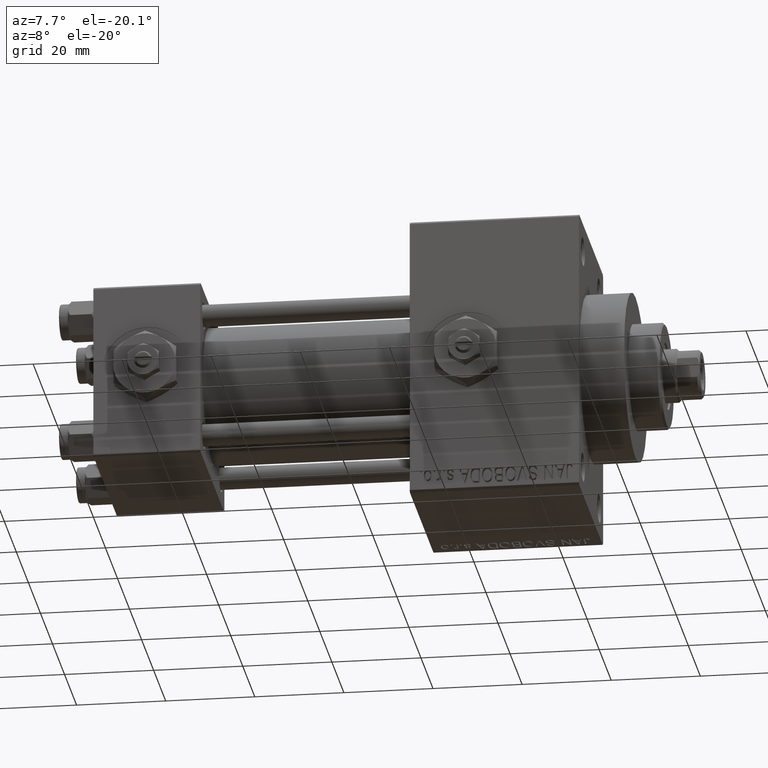
[diagram: clean part render]
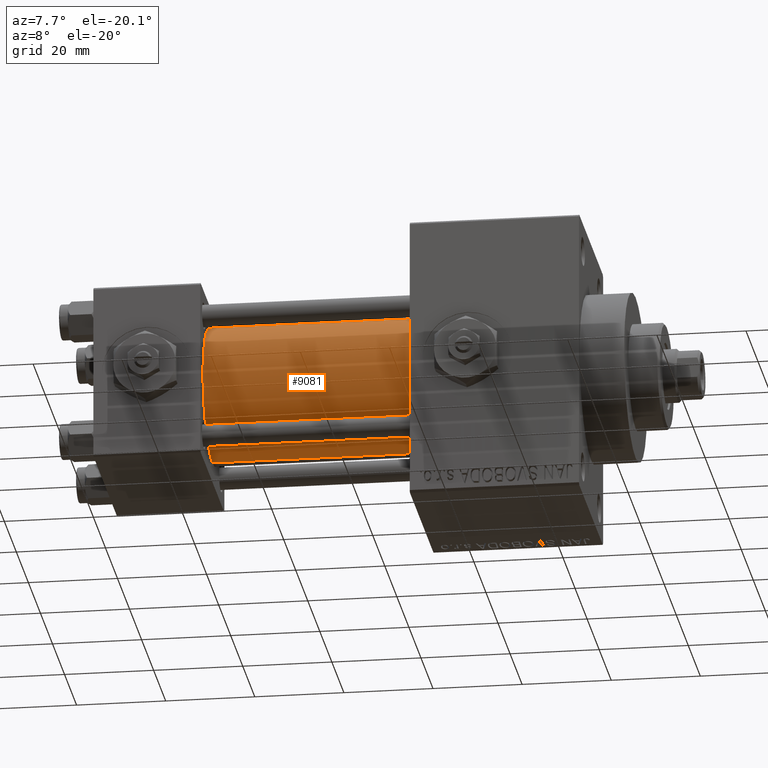
[diagram: same view with one face highlighted and labeled with its STEP entity id]
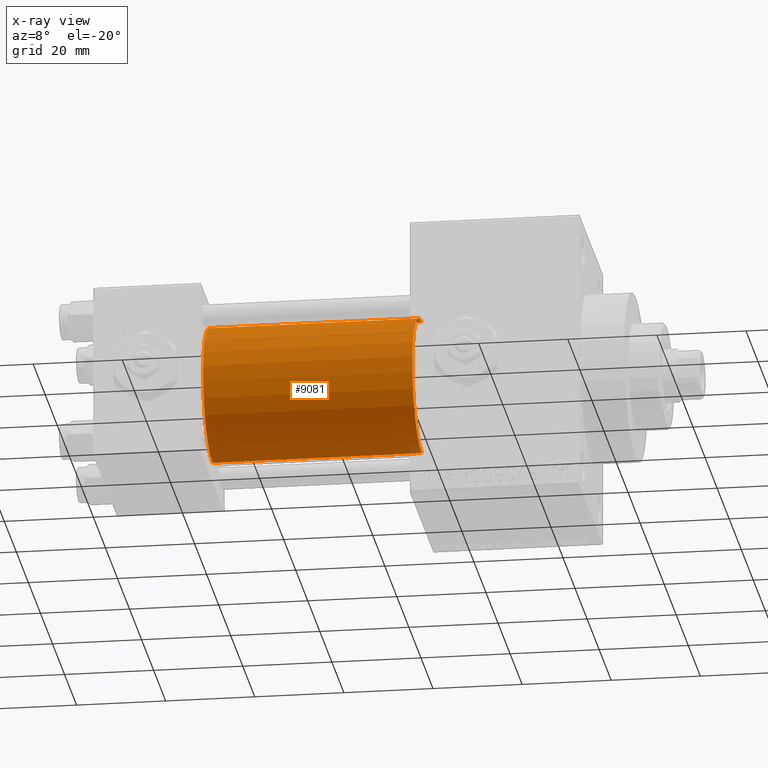
[diagram: x-ray of the same camera — body ghosted, the highlighted face saturated]
A machine part, auxiliary view. The second image highlights one B-rep face of the part: STEP entity #9081.
The next image is the same camera in x-ray: the body ghosted, the highlighted face saturated — about 0% of this face is hidden behind the body in this view.
In plain terms, the highlighted cylindrical surface (partial cylindrical patch) has radius 15.5 mm, axis along (-1, -0, -0).
Its self-contained STEP definition (entity closure, byte-faithful):
#536 = CARTESIAN_POINT ( 'NONE',  ( 71.00000000000001421, -7.038826752868131828E-16, -15.50000000000000000 ) ) ;
#926 = CIRCLE ( 'NONE', #42075, 15.50000000000000000 ) ;
#1240 = DIRECTION ( 'NONE',  ( 0.000000000000000000, 0.000000000000000000, 1.000000000000000000 ) ) ;
#1598 = DIRECTION ( 'NONE',  ( -1.000000000000000000, -0.000000000000000000, -0.000000000000000000 ) ) ;
#1743 = DIRECTION ( 'NONE',  ( 1.000000000000000000, 0.000000000000000000, 0.000000000000000000 ) ) ;
#1971 = ORIENTED_EDGE ( 'NONE', *, *, #12463, .T. ) ;
#1983 = ORIENTED_EDGE ( 'NONE', *, *, #20313, .F. ) ;
#5435 = FACE_OUTER_BOUND ( 'NONE', #25173, .T. ) ;
#5460 = CARTESIAN_POINT ( 'NONE',  ( 71.00000000000001421, -2.602085213965210642E-15, 0.000000000000000000 ) ) ;
#5830 = CARTESIAN_POINT ( 'NONE',  ( 71.00000000000001421, -2.602085213965210642E-15, 15.50000000000000000 ) ) ;
#6904 = DIRECTION ( 'NONE',  ( -1.000000000000000000, -0.000000000000000000, -0.000000000000000000 ) ) ;
#8924 = CARTESIAN_POINT ( 'NONE',  ( 71.00000000000001421, -2.602085213965210642E-15, 0.000000000000000000 ) ) ;
#9081 = ADVANCED_FACE ( 'NONE', ( #5435 ), #16379, .T. ) ;
#10535 = EDGE_CURVE ( 'NONE', #43814, #18709, #24575, .T. ) ;
#12463 = EDGE_CURVE ( 'NONE', #47655, #43814, #36669, .T. ) ;
#13934 = ORIENTED_EDGE ( 'NONE', *, *, #10535, .T. ) ;
#14966 = VECTOR ( 'NONE', #1598, 1000.000000000000000 ) ;
#16006 = LINE ( 'NONE', #23933, #14966 ) ;
#16379 = CYLINDRICAL_SURFACE ( 'NONE', #20584, 15.50000000000000000 ) ;
#18709 = VERTEX_POINT ( 'NONE', #35348 ) ;
#20126 = DIRECTION ( 'NONE',  ( 0.000000000000000000, 0.000000000000000000, -1.000000000000000000 ) ) ;
#20313 = EDGE_CURVE ( 'NONE', #47655, #23879, #926, .T. ) ;
#20581 = DIRECTION ( 'NONE',  ( -1.000000000000000000, -0.000000000000000000, -0.000000000000000000 ) ) ;
#20584 = AXIS2_PLACEMENT_3D ( 'NONE', #8924, #20581, #1240 ) ;
#23879 = VERTEX_POINT ( 'NONE', #536 ) ;
#23933 = CARTESIAN_POINT ( 'NONE',  ( 71.00000000000001421, -7.038826752868131828E-16, -15.50000000000000000 ) ) ;
#24575 = CIRCLE ( 'NONE', #35653, 15.50000000000000000 ) ;
#25173 = EDGE_LOOP ( 'NONE', ( #34762, #1983, #1971, #13934 ) ) ;
#34762 = ORIENTED_EDGE ( 'NONE', *, *, #40254, .F. ) ;
#35348 = CARTESIAN_POINT ( 'NONE',  ( 24.00000000000000000, -7.038826752868131828E-16, -15.50000000000000000 ) ) ;
#35653 = AXIS2_PLACEMENT_3D ( 'NONE', #39159, #38676, #41886 ) ;
#36669 = LINE ( 'NONE', #44849, #46021 ) ;
#38676 = DIRECTION ( 'NONE',  ( 1.000000000000000000, 0.000000000000000000, 0.000000000000000000 ) ) ;
#39159 = CARTESIAN_POINT ( 'NONE',  ( 24.00000000000000000, -2.602085213965210642E-15, 0.000000000000000000 ) ) ;
#40254 = EDGE_CURVE ( 'NONE', #23879, #18709, #16006, .T. ) ;
#41415 = CARTESIAN_POINT ( 'NONE',  ( 24.00000000000000000, -2.602085213965210642E-15, 15.50000000000000000 ) ) ;
#41886 = DIRECTION ( 'NONE',  ( 0.000000000000000000, 0.000000000000000000, 1.000000000000000000 ) ) ;
#42075 = AXIS2_PLACEMENT_3D ( 'NONE', #5460, #1743, #20126 ) ;
#43814 = VERTEX_POINT ( 'NONE', #41415 ) ;
#44849 = CARTESIAN_POINT ( 'NONE',  ( 71.00000000000001421, -2.602085213965210642E-15, 15.50000000000000000 ) ) ;
#46021 = VECTOR ( 'NONE', #6904, 1000.000000000000000 ) ;
#47655 = VERTEX_POINT ( 'NONE', #5830 ) ;